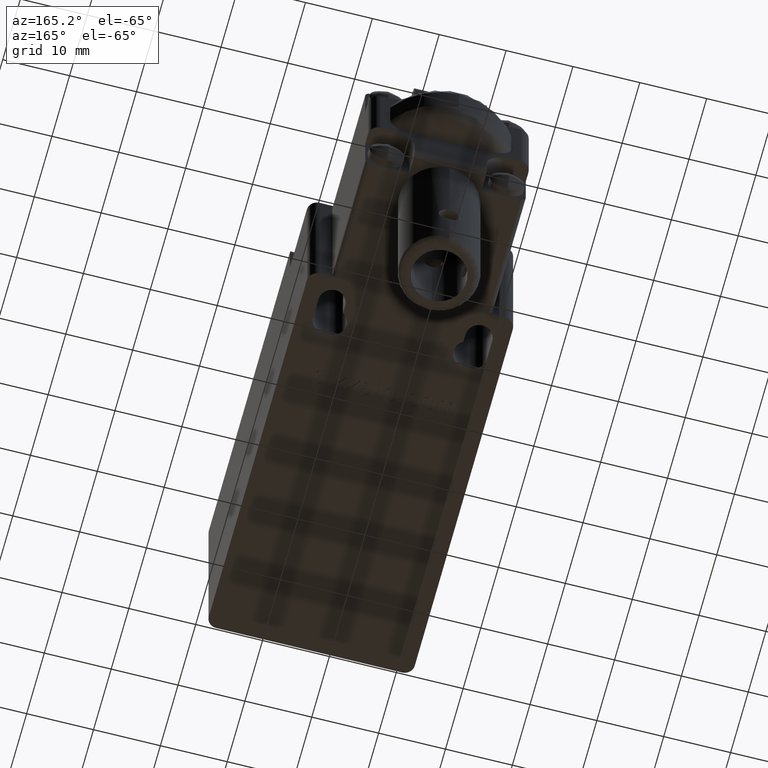
[diagram: clean part render]
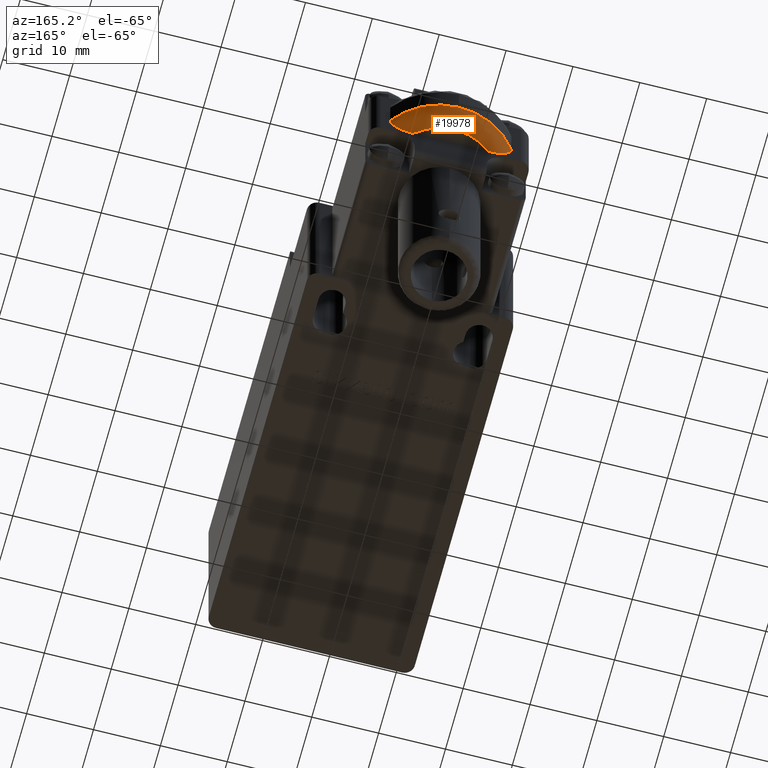
[diagram: same view with one face highlighted and labeled with its STEP entity id]
A machine part, auxiliary view. The second image highlights one B-rep face of the part: STEP entity #19978.
In plain terms, the highlighted face is a freeform B-spline surface patch.
Its self-contained STEP definition (entity closure, byte-faithful):
#17826=CARTESIAN_POINT('',(9.048756820690894,28.699999999999996,-2.199999999999999));
#17827=VERTEX_POINT('',#17826);
#17828=CARTESIAN_POINT('',(-1.301043E-015,33.299999999999997,-2.199999999999999));
#17829=VERTEX_POINT('',#17828);
#17830=CARTESIAN_POINT('',(-1.301043E-015,22.099999999999994,-2.199999999999999));
#17831=DIRECTION('',(0.0,0.0,1.0));
#17832=DIRECTION('',(0.0,-1.0,0.0));
#17833=AXIS2_PLACEMENT_3D('',#17830,#17831,#17832);
#17834=CIRCLE('',#17833,11.199999999999999);
#17835=EDGE_CURVE('',#17827,#17829,#17834,.T.);
#18732=CARTESIAN_POINT('',(-9.048756820690898,28.699999999999996,-2.199999999999999));
#18733=VERTEX_POINT('',#18732);
#18742=CARTESIAN_POINT('',(-5.668333088307358,28.699999999999996,-4.699999999999998));
#18743=VERTEX_POINT('',#18742);
#18744=CARTESIAN_POINT('',(-9.048756820690898,28.699999999999996,-2.199999999999999));
#18745=CARTESIAN_POINT('',(-9.048756820690901,28.699999999999996,-2.397186764246194));
#18746=CARTESIAN_POINT('',(-9.020329101767192,28.699999999999996,-2.589306555282658));
#18747=CARTESIAN_POINT('',(-8.910025376147953,28.699999999999996,-2.964019483353804));
#18748=CARTESIAN_POINT('',(-8.827962357167543,28.699999999999996,-3.144142982992074));
#18749=CARTESIAN_POINT('',(-8.622567769656770,28.699999999999996,-3.474900261623696));
#18750=CARTESIAN_POINT('',(-8.497084340890140,28.699999999999996,-3.628843641136849));
#18751=CARTESIAN_POINT('',(-8.218549251213425,28.700000000000003,-3.901153595550277));
#18752=CARTESIAN_POINT('',(-8.062783228797725,28.700000000000003,-4.022541924596331));
#18753=CARTESIAN_POINT('',(-7.733222726657048,28.699999999999992,-4.231544654336591));
#18754=CARTESIAN_POINT('',(-7.560368251709440,28.699999999999992,-4.319104804316282));
#18755=CARTESIAN_POINT('',(-7.201126659704576,28.699999999999996,-4.465831118488344));
#18756=CARTESIAN_POINT('',(-7.013276977280655,28.699999999999992,-4.525185284323336));
#18757=CARTESIAN_POINT('',(-6.445259072480165,28.700000000000003,-4.661839588603889));
#18758=CARTESIAN_POINT('',(-6.059388155480526,28.699999999999996,-4.699999999999999));
#18759=CARTESIAN_POINT('',(-5.668333088307358,28.699999999999996,-4.699999999999998));
#18760=B_SPLINE_CURVE_WITH_KNOTS('',3,(#18744,#18745,#18746,#18747,#18748,#18749,#18750,#18751,#18752,#18753,#18754,#18755,#18756,#18757,#18758,#18759),.UNSPECIFIED.,.F.,.U.,(4,2,2,2,2,2,2,4),(0.0,0.000582381578356,0.001164763156712,0.001747144735068,0.002329526313425,0.002911907891781,0.003494289470137,0.004659052626849),.UNSPECIFIED.);
#18761=EDGE_CURVE('',#18733,#18743,#18760,.T.);
#18763=CARTESIAN_POINT('',(5.668333088307356,28.699999999999996,-4.699999999999998));
#18764=VERTEX_POINT('',#18763);
#18771=CARTESIAN_POINT('',(5.668333088307356,28.699999999999996,-4.699999999999998));
#18772=CARTESIAN_POINT('',(6.059404346214167,28.699999999999996,-4.699999999999997));
#18773=CARTESIAN_POINT('',(6.444111427699332,28.699999999999992,-4.661748600448926));
#18774=CARTESIAN_POINT('',(7.196268673731455,28.700000000000003,-4.481524411320991));
#18775=CARTESIAN_POINT('',(7.567093377806106,28.699999999999996,-4.336556714656631));
#18776=CARTESIAN_POINT('',(8.060590035144498,28.699999999999992,-4.024103760423572));
#18777=CARTESIAN_POINT('',(8.217335286936471,28.699999999999992,-3.902172283939713));
#18778=CARTESIAN_POINT('',(8.496004913482274,28.700000000000003,-3.630065709525607));
#18779=CARTESIAN_POINT('',(8.619975957376614,28.699999999999996,-3.478672629314617));
#18780=CARTESIAN_POINT('',(8.827970760547585,28.699999999999992,-3.144525850189343));
#18781=CARTESIAN_POINT('',(8.908334343673690,28.699999999999992,-2.968041089285959));
#18782=CARTESIAN_POINT('',(9.019095724167160,28.699999999999996,-2.595174377995573));
#18783=CARTESIAN_POINT('',(9.048756820690898,28.700000000000003,-2.397631754047827));
#18784=CARTESIAN_POINT('',(9.048756820690894,28.699999999999996,-2.199999999999999));
#18785=B_SPLINE_CURVE_WITH_KNOTS('',3,(#18771,#18772,#18773,#18774,#18775,#18776,#18777,#18778,#18779,#18780,#18781,#18782,#18783,#18784),.UNSPECIFIED.,.F.,.U.,(4,2,2,2,2,2,4),(0.0,0.001157305139638,0.002314610279275,0.002893262849094,0.003471915418913,0.004050567988732,0.004629220558550),.UNSPECIFIED.);
#18786=EDGE_CURVE('',#18764,#17827,#18785,.T.);
#19898=CARTESIAN_POINT('',(-1.301043E-015,22.099999999999994,-2.199999999999999));
#19899=DIRECTION('',(0.0,0.0,1.0));
#19900=DIRECTION('',(0.0,-1.0,0.0));
#19901=AXIS2_PLACEMENT_3D('',#19898,#19899,#19900);
#19902=CIRCLE('',#19901,11.199999999999999);
#19903=EDGE_CURVE('',#17829,#18733,#19902,.T.);
#19922=CARTESIAN_POINT('',(-1.301043E-015,22.099999999999994,-4.699999999999998));
#19923=DIRECTION('',(0.0,0.0,-1.0));
#19924=DIRECTION('',(0.0,-1.0,0.0));
#19925=AXIS2_PLACEMENT_3D('',#19922,#19923,#19924);
#19926=CIRCLE('',#19925,8.699999999999998);
#19927=EDGE_CURVE('',#18743,#18764,#19926,.T.);
#19948=CARTESIAN_POINT('',(9.048757255470896,28.699999403906233,-2.199999858578645));
#19949=CARTESIAN_POINT('',(9.048757369728714,28.699999487243812,-4.699999999999999));
#19950=CARTESIAN_POINT('',(7.028945253831184,27.226785167911007,-4.699999999999993));
#19951=CARTESIAN_POINT('',(5.693600261527732,33.299999999999990,-2.199999858578645));
#19952=CARTESIAN_POINT('',(5.693600333420293,33.300000141421343,-4.699999999999999));
#19953=CARTESIAN_POINT('',(4.422707274115589,30.799999858578634,-4.699999999999994));
#19954=CARTESIAN_POINT('',(-1.301043E-015,33.299999999999990,-2.199999858578645));
#19955=CARTESIAN_POINT('',(-1.301043E-015,33.300000141421350,-4.700000000000000));
#19956=CARTESIAN_POINT('',(-1.301043E-015,30.799999858578637,-4.699999999999995));
#19957=CARTESIAN_POINT('',(-5.693616775468513,33.299999999999983,-2.199999858578645));
#19958=CARTESIAN_POINT('',(-5.693616847361287,33.300000141421357,-4.700000000000000));
#19959=CARTESIAN_POINT('',(-4.422720101908667,30.799999858578634,-4.699999999999994));
#19960=CARTESIAN_POINT('',(-9.048772721456635,28.699978199617185,-2.199999858578645));
#19961=CARTESIAN_POINT('',(-9.048772835714649,28.699978282954508,-4.700000000000000));
#19962=CARTESIAN_POINT('',(-7.028957267587767,27.226768696722466,-4.699999999999995));
#19970=(BOUNDED_SURFACE()B_SPLINE_SURFACE(2,2,((#19948,#19951,#19954,#19957,#19960),(#19949,#19952,#19955,#19958,#19961),(#19950,#19953,#19956,#19959,#19962)),.UNSPECIFIED.,.F.,.F.,.U.)B_SPLINE_SURFACE_WITH_KNOTS((3,3),(3,2,3),(-1.000000E-008,0.250000010000000),(0.351531400555780,0.500000000000000,0.648468955164641),.UNSPECIFIED.)GEOMETRIC_REPRESENTATION_ITEM()RATIONAL_B_SPLINE_SURFACE(((0.858715596615601,0.826058235419977,1.000000023431458,0.826057818667571,0.858715753106311),(0.607203597189399,0.584111356556005,0.707106769470819,0.584111061867564,0.607203707845037),(0.858715556373686,0.826058196708482,0.999999976568544,0.826057779956095,0.858715712864389)))REPRESENTATION_ITEM('')SURFACE());
#19971=ORIENTED_EDGE('',*,*,#18761,.F.);
#19972=ORIENTED_EDGE('',*,*,#19903,.F.);
#19973=ORIENTED_EDGE('',*,*,#17835,.F.);
#19974=ORIENTED_EDGE('',*,*,#18786,.F.);
#19975=ORIENTED_EDGE('',*,*,#19927,.F.);
#19976=EDGE_LOOP('',(#19971,#19972,#19973,#19974,#19975));
#19977=FACE_OUTER_BOUND('',#19976,.T.);
#19978=ADVANCED_FACE('',(#19977),#19970,.T.);